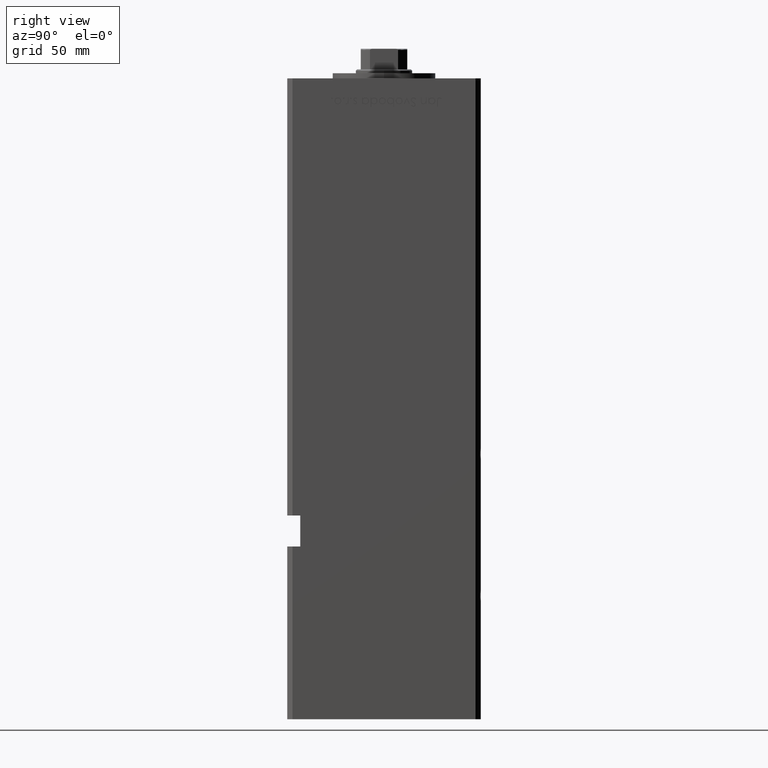
[diagram: clean part render]
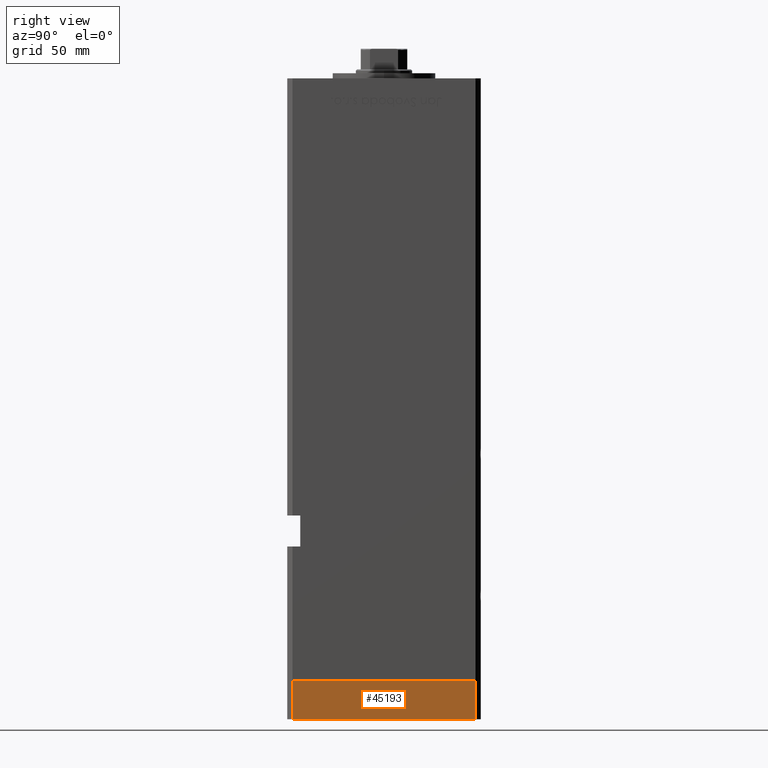
[diagram: same view with one face highlighted and labeled with its STEP entity id]
A machine part, right view. The second image highlights one B-rep face of the part: STEP entity #45193.
In plain terms, the highlighted planar face has unit normal (1, 0, 0).
Its self-contained STEP definition (entity closure, byte-faithful):
#3356 = CARTESIAN_POINT ( 'NONE',  ( -42.50000000000000711, 35.49999999999997158, -15.00000000000000000 ) ) ;
#4012 = EDGE_CURVE ( 'NONE', #33032, #39006, #6786, .T. ) ;
#4813 = DIRECTION ( 'NONE',  ( 9.773090005503140331E-17, -1.000000000000000000, 0.000000000000000000 ) ) ;
#5036 = LINE ( 'NONE', #30532, #17351 ) ;
#5624 = CARTESIAN_POINT ( 'NONE',  ( -42.50000000000000000, -35.50000000000000711, 0.000000000000000000 ) ) ;
#6298 = EDGE_CURVE ( 'NONE', #11175, #49022, #34329, .T. ) ;
#6786 = LINE ( 'NONE', #23146, #43718 ) ;
#11175 = VERTEX_POINT ( 'NONE', #34646 ) ;
#14465 = VECTOR ( 'NONE', #41751, 1000.000000000000000 ) ;
#15108 = ORIENTED_EDGE ( 'NONE', *, *, #4012, .F. ) ;
#16212 = LINE ( 'NONE', #21049, #14465 ) ;
#17351 = VECTOR ( 'NONE', #17636, 1000.000000000000000 ) ;
#17636 = DIRECTION ( 'NONE',  ( 0.000000000000000000, 0.000000000000000000, 1.000000000000000000 ) ) ;
#18029 = EDGE_LOOP ( 'NONE', ( #15108, #23036, #26762, #52254 ) ) ;
#21049 = CARTESIAN_POINT ( 'NONE',  ( -42.50000000000000000, -35.50000000000000711, -15.00000000000000000 ) ) ;
#23036 = ORIENTED_EDGE ( 'NONE', *, *, #27335, .F. ) ;
#23146 = CARTESIAN_POINT ( 'NONE',  ( -42.50000000000000711, 35.49999999999997158, 0.000000000000000000 ) ) ;
#26762 = ORIENTED_EDGE ( 'NONE', *, *, #6298, .T. ) ;
#27162 = AXIS2_PLACEMENT_3D ( 'NONE', #3356, #43652, #44459 ) ;
#27335 = EDGE_CURVE ( 'NONE', #11175, #33032, #5036, .T. ) ;
#29511 = CARTESIAN_POINT ( 'NONE',  ( -42.50000000000000711, 35.49999999999997158, -15.00000000000000000 ) ) ;
#30532 = CARTESIAN_POINT ( 'NONE',  ( -42.50000000000000711, 35.49999999999997158, -15.00000000000000000 ) ) ;
#31273 = PLANE ( 'NONE',  #27162 ) ;
#33032 = VERTEX_POINT ( 'NONE', #40488 ) ;
#34329 = LINE ( 'NONE', #29511, #39383 ) ;
#34646 = CARTESIAN_POINT ( 'NONE',  ( -42.50000000000000711, 35.49999999999997158, -15.00000000000000000 ) ) ;
#39006 = VERTEX_POINT ( 'NONE', #5624 ) ;
#39383 = VECTOR ( 'NONE', #4813, 1000.000000000000000 ) ;
#40162 = FACE_OUTER_BOUND ( 'NONE', #18029, .T. ) ;
#40488 = CARTESIAN_POINT ( 'NONE',  ( -42.50000000000000711, 35.49999999999997158, 0.000000000000000000 ) ) ;
#41751 = DIRECTION ( 'NONE',  ( 0.000000000000000000, 0.000000000000000000, 1.000000000000000000 ) ) ;
#43652 = DIRECTION ( 'NONE',  ( -1.000000000000000000, -9.773090005503140331E-17, 0.000000000000000000 ) ) ;
#43718 = VECTOR ( 'NONE', #52202, 1000.000000000000000 ) ;
#44459 = DIRECTION ( 'NONE',  ( 9.773090005503140331E-17, -1.000000000000000000, 0.000000000000000000 ) ) ;
#45193 = ADVANCED_FACE ( 'NONE', ( #40162 ), #31273, .T. ) ;
#46372 = CARTESIAN_POINT ( 'NONE',  ( -42.50000000000000000, -35.50000000000000711, -15.00000000000000000 ) ) ;
#49022 = VERTEX_POINT ( 'NONE', #46372 ) ;
#49203 = EDGE_CURVE ( 'NONE', #49022, #39006, #16212, .T. ) ;
#52202 = DIRECTION ( 'NONE',  ( 9.773090005503140331E-17, -1.000000000000000000, 0.000000000000000000 ) ) ;
#52254 = ORIENTED_EDGE ( 'NONE', *, *, #49203, .T. ) ;